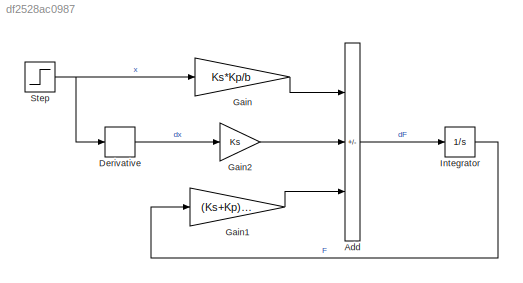
MODEL slx_df2528ac0987
KIND model
CONFIG AbsTol = auto
CONFIG EnableMultiTasking = off
CONFIG FixedStep = 0.0001
CONFIG MaxStep = auto
CONFIG MinStep = auto
CONFIG RelTol = 1e-3
CONFIG SampleTimeConstraint = Unconstrained
CONFIG SolverName = FixedStepAuto
CONFIG StartTime = 0.0
CONFIG StopTime = 1
BLOCK [Sum] Add
  IconShape = rectangular
  Inputs = ++-
BLOCK [Derivative] Derivative
BLOCK [Gain] Gain
  Gain = Ks*Kp/b
BLOCK [Gain] Gain1
  Gain = (Ks+Kp)/b
BLOCK [Gain] Gain2
  Gain = Ks
BLOCK [Integrator] Integrator
BLOCK [Step] Step
  After = x_value
  SampleTime = 0
  Time = step_time
LINE Add:1 -> Integrator:1
LINE Derivative:1 -> Gain2:1
LINE Gain1:1 -> Add:3
LINE Gain2:1 -> Add:2
LINE Gain:1 -> Add:1
LINE Integrator:1 -> Gain1:1
NET Step:1 -> Derivative:1, Gain:1
note: NET lines group one-source signal fan-out (src -> all destinations, sorted); 1:1 wires keep LINE
